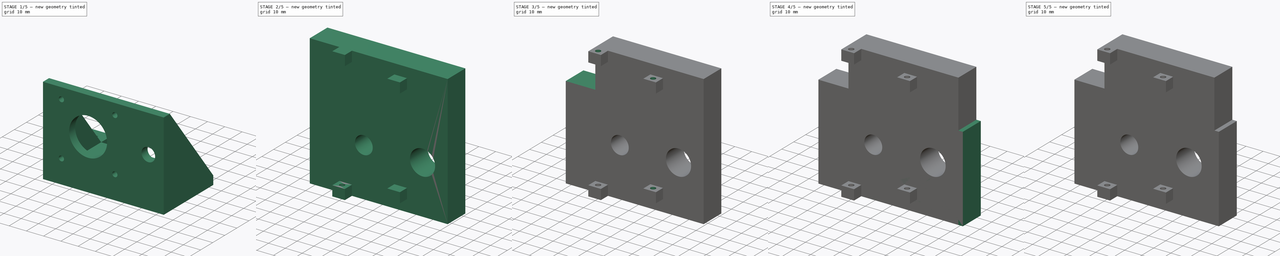
[diagram: build sequence overview — one tinted view per stage of 5, left to right]
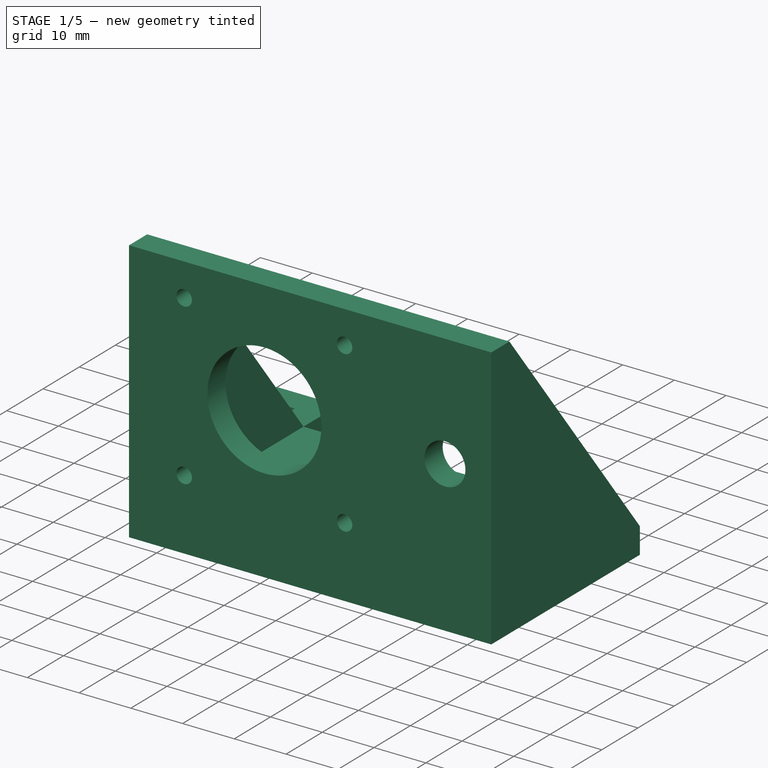
[diagram: stage 1 of 5 — iso view after this stage's code; geometry added in this stage tinted green]
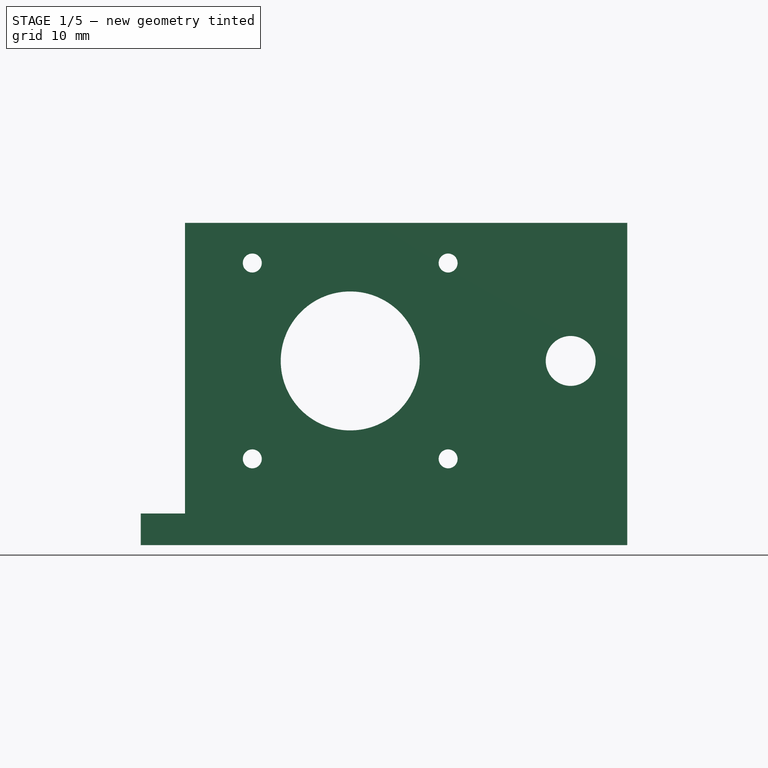
[diagram: stage 1 of 5 — front view after this stage's code; geometry added in this stage tinted green]
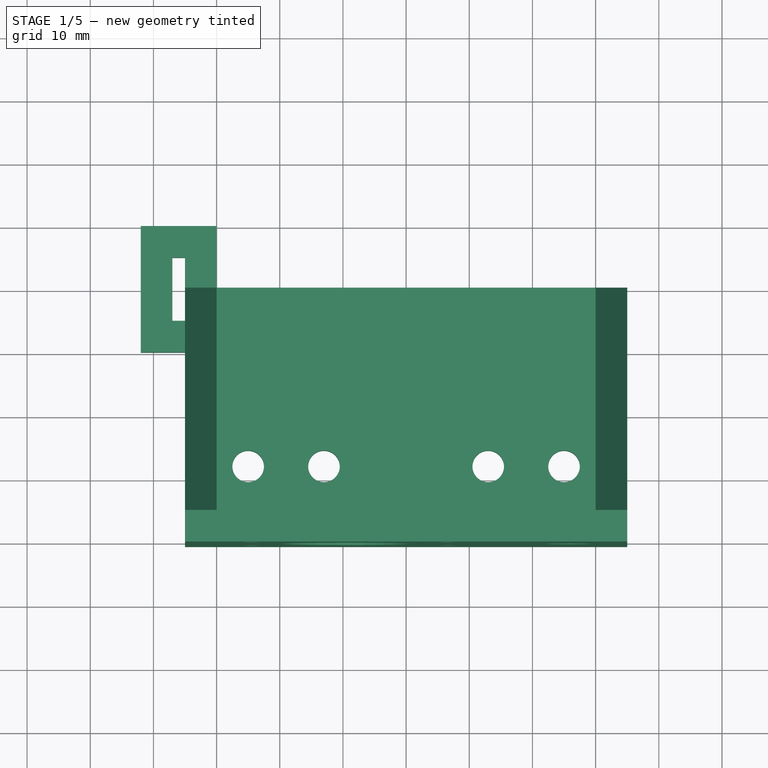
[diagram: stage 1 of 5 — top view after this stage's code; geometry added in this stage tinted green]
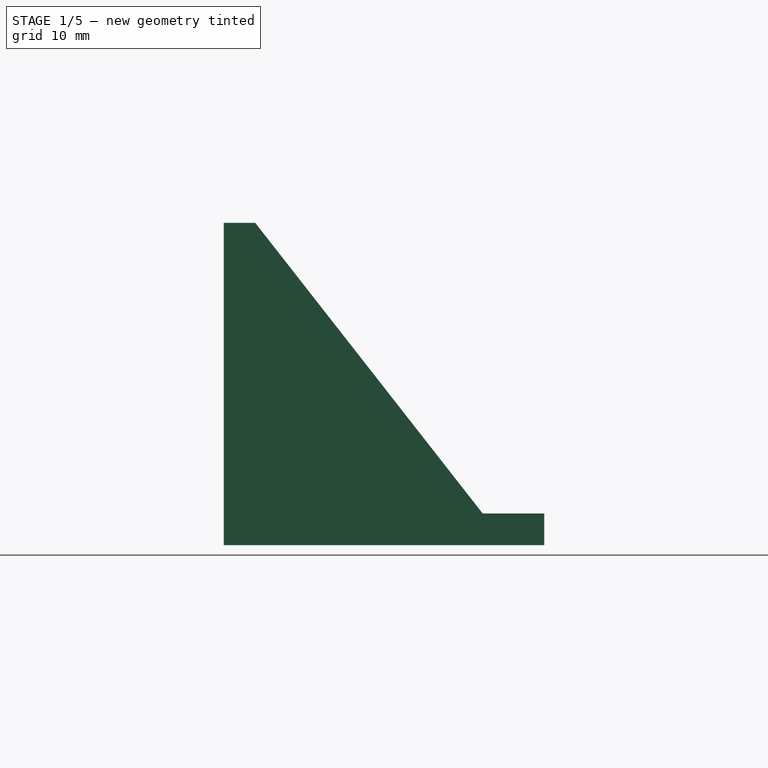
[diagram: stage 1 of 5 — right view after this stage's code; geometry added in this stage tinted green]
FCSTD DOCUMENT  (FreeCAD 0.19RUnknown)
Label: PenPlotter
License: All rights reserved
LicenseURL: http://en.wikipedia.org/wiki/All_rights_reserved
objects: Sketcher::SketchObject×23, PartDesign::Pocket×13, PartDesign::Pad×10, PartDesign::Body×4, PartDesign::ShapeBinder×3, PartDesign::LinearPattern×2, Spreadsheet::Sheet×1, PartDesign::Mirrored×1
note: 79 computed .brp shape members not serialized (recipe doc carries the construction recipe); baked Part::Feature solids carry a one-line shape summary decoded from their .brp

FEATURE [Sketcher::SketchObject] Sketch
  FullyConstrained = true
  MapMode = 5
  Support = -> [XY_Plane]
  expr: Constraints[24] = <<Spreadsheet>>.BottomDepth
  sketch-geometry (9):
    g0: LineSegment StartX=-35 StartY=20.5 StartZ=0 EndX=35 EndY=20.5 EndZ=0
    g1: LineSegment StartX=35 StartY=20.5 StartZ=0 EndX=35 EndY=-20.5 EndZ=0
    g2: LineSegment StartX=35 StartY=-20.5 StartZ=0 EndX=-35 EndY=-20.5 EndZ=0
    g3: LineSegment StartX=-35 StartY=-20.5 StartZ=0 EndX=-35 EndY=20.5 EndZ=0
    g4: Circle CenterX=-25 CenterY=-7.8 CenterZ=0 NormalX=0 NormalY=0 NormalZ=1 AngleXU=0 Radius=2.5
    g5: Circle CenterX=-13 CenterY=-7.8 CenterZ=0 NormalX=0 NormalY=0 NormalZ=1 AngleXU=0 Radius=2.5
    g6: Circle CenterX=13 CenterY=-7.8 CenterZ=0 NormalX=0 NormalY=0 NormalZ=1 AngleXU=0 Radius=2.5
    g7: Circle CenterX=25 CenterY=-7.8 CenterZ=0 NormalX=0 NormalY=0 NormalZ=1 AngleXU=0 Radius=2.5
    g8: LineSegment StartX=-35 StartY=-7.8 StartZ=0 EndX=35 EndY=-7.8 EndZ=0
  constraints (25):
    c: Coincident(g0,g1)
    c: Coincident(g1,g2)
    c: Coincident(g2,g3)
    c: Coincident(g3,g0)
    c: Horizontal(g0)
    c: Horizontal(g2)
    c: Vertical(g1)
    c: Vertical(g3)
    c: DistanceX(g0,g0) = 70
    c: Symmetric(g0,g2,g-1)
    c: Diameter(g4) = 5
    c: Equal(g4,g5)
    c: Equal(g5,g6)
    c: Equal(g6,g7)
    c: DistanceX(g2,g4) = 10
    c: DistanceX(g2,g5) = 22
    c: Horizontal(g8)
    c: PointOnObject(g8,g3)
    c: DistanceY(g2,g8) = 12.7
    c: PointOnObject(g5,g8)
    c: PointOnObject(g4,g8)
    c: PointOnObject(g8,g1)
    c: Symmetric(g4,g7,g-2)
    c: Symmetric(g5,g6,g-2)
    c: DistanceY(g1,g1) = 41
FEATURE [Spreadsheet::Sheet] Spreadsheet
  cells = A3=Wall Thickness; B3(WallThickness)=5; A4=Shaft Diameter; B4(ShaftDiameter)=7.9; A5=Slide Rail Width; B5(SlideRailWidth)=30.1; A6=Slide Rail Width Inner; B6=25.4; A7=Bottom Depth; B7(BottomDepth)=41; A8=Pen Mount Shaft Diameter; B8(PenMountShaftDiameter)=3
FEATURE [PartDesign::Pad] Pad  label="Bottom"
  Direction = (1,1,1)
  Length = 5
  Length2 = 100
  Profile = -> Sketch
  Type = 0
  expr: Length = Spreadsheet.WallThickness
FEATURE [Sketcher::SketchObject] Sketch001
  ExternalGeometry = -> [Pad]
  FullyConstrained = true
  MapMode = 5
  Placement = pos=(0,-20.5,0) rot=(1,0,0;1.5708rad)
  Support = -> [Pad]
  expr: Constraints[41] = Spreadsheet.WallThickness
  expr: Constraints[36] = <<Spreadsheet>>.ShaftDiameter
  expr: Constraints[47] = Spreadsheet.WallThickness + <<Spreadsheet>>.ShaftDiameter / 2
  sketch-geometry (19):
    g0: LineSegment StartX=35 StartY=51 StartZ=0 EndX=35 EndY=5 EndZ=0
    g1: LineSegment StartX=35 StartY=5 StartZ=0 EndX=-35 EndY=5 EndZ=0
    g2: LineSegment StartX=-35 StartY=5 StartZ=0 EndX=-35 EndY=51 EndZ=0
    g3: LineSegment StartX=-24.35 StartY=44.65 StartZ=0 EndX=6.65 EndY=44.65 EndZ=0
    g4: LineSegment StartX=6.65 StartY=44.65 StartZ=0 EndX=6.65 EndY=13.65 EndZ=0
    g5: LineSegment StartX=6.65 StartY=13.65 StartZ=0 EndX=-24.35 EndY=13.65 EndZ=0
    g6: LineSegment StartX=-24.35 StartY=13.65 StartZ=0 EndX=-24.35 EndY=44.65 EndZ=0
    g7: Circle CenterX=-24.35 CenterY=13.65 CenterZ=0 NormalX=0 NormalY=0 NormalZ=1 AngleXU=0 Radius=1.5
    g8: Circle CenterX=-24.35 CenterY=44.65 CenterZ=0 NormalX=0 NormalY=0 NormalZ=1 AngleXU=0 Radius=1.5
    g9: Circle CenterX=6.65 CenterY=13.65 CenterZ=0 NormalX=0 NormalY=0 NormalZ=1 AngleXU=0 Radius=1.5
    g10: Circle CenterX=6.65 CenterY=44.65 CenterZ=0 NormalX=0 NormalY=0 NormalZ=1 AngleXU=0 Radius=1.5
    g11: Circle CenterX=-8.85 CenterY=29.15 CenterZ=0 NormalX=0 NormalY=0 NormalZ=1 AngleXU=0 Radius=11
    g12: LineSegment StartX=-30 StartY=50.3 StartZ=0 EndX=12.3 EndY=50.3 EndZ=0
    g13: LineSegment StartX=12.3 StartY=50.3 StartZ=0 EndX=12.3 EndY=8 EndZ=0
    g14: LineSegment StartX=12.3 StartY=8 StartZ=0 EndX=-30 EndY=8 EndZ=0
    g15: LineSegment StartX=-30 StartY=8 StartZ=0 EndX=-30 EndY=50.3 EndZ=0
    g16: Circle CenterX=26.05 CenterY=29.15 CenterZ=0 NormalX=0 NormalY=0 NormalZ=1 AngleXU=0 Radius=3.95
    g17: LineSegment StartX=-8.85 StartY=29.15 StartZ=0 EndX=26.05 EndY=29.15 EndZ=0
    g18: LineSegment StartX=35 StartY=51 StartZ=0 EndX=-35 EndY=51 EndZ=0
  constraints (48):
    c: Coincident(g0,g1)
    c: Coincident(g1,g2)
    c: Vertical(g0)
    c: Vertical(g2)
    c: Coincident(g0,g-3)
    c: Coincident(g1,g-3)
    c: DistanceY(g0,g0) = 46
    c: Coincident(g3,g4)
    c: Coincident(g4,g5)
    c: Coincident(g5,g6)
    c: Coincident(g6,g3)
    c: Horizontal(g3)
    c: Horizontal(g5)
    c: Vertical(g4)
    c: Vertical(g6)
    c: DistanceX(g3,g3) = 31
    c: Equal(g4,g3)
    c: Coincident(g7,g5)
    c: Coincident(g8,g3)
    c: Coincident(g9,g4)
    c: Diameter(g7) = 3
    c: Equal(g7,g9)
    c: Equal(g9,g10)
    c: Equal(g10,g8)
    c: Diameter(g11) = 22
    c: Coincident(g12,g13)
    c: Coincident(g13,g14)
    c: Coincident(g14,g15)
    c: Coincident(g15,g12)
    c: Horizontal(g12)
    c: Horizontal(g14)
    c: Vertical(g13)
    c: Vertical(g15)
    c: DistanceX(g12,g12) = 42.3
    c: Equal(g12,g13)
    c: Symmetric(g12,g14,g11)
    c: Diameter(g16) = 7.9
    c: Coincident(g17,g11)
    c: Horizontal(g17)
    c: Coincident(g16,g17)
    c: DistanceY(g1,g14) = 3
    c: DistanceX(g1,g14) = 5
    c: Coincident(g18,g0)
    c: Coincident(g18,g2)
    c: Horizontal(g18)
    c: Coincident(g3,g10)
    c: Symmetric(g10,g7,g11)
    c: Distance(g16,g0) = 8.95
FEATURE [PartDesign::Pad] Pad004  label="FrontWall"
  BaseFeature = -> Pad
  Direction = (1,1,1)
  Length = 5
  Length2 = 100
  Profile = -> Sketch001
  Reversed = true
  Type = 0
  expr: Length = Spreadsheet.WallThickness
FEATURE [Sketcher::SketchObject] Sketch002
  ExternalGeometry = -> [Pad004]
  FullyConstrained = true
  MapMode = 5
  Placement = pos=(35,0,0) rot=(0.57735,0.57735,0.57735;2.0944rad)
  sketch-geometry (3):
    g0: LineSegment StartX=-15.5 StartY=51 StartZ=0 EndX=20.5 EndY=5 EndZ=0
    g1: LineSegment StartX=20.5 StartY=5 StartZ=0 EndX=-15.5 EndY=5 EndZ=0
    g2: LineSegment StartX=-15.5 StartY=5 StartZ=0 EndX=-15.5 EndY=51 EndZ=0
  constraints (6):
    c: Coincident(g0,g1)
    c: Coincident(g2,g0)
    c: Coincident(g0,g-3)
    c: Coincident(g0,g-4)
    c: Coincident(g-5,g1)
    c: Coincident(g-5,g2)
FEATURE [PartDesign::Pad] Pad005  label="RightWall"
  BaseFeature = -> Pad004
  Direction = (1,1,1)
  Length = 5
  Length2 = 100
  Profile = -> Sketch002
  Reversed = true
  Type = 0
  expr: Length = Spreadsheet.WallThickness
FEATURE [Sketcher::SketchObject] Sketch003
  ExternalGeometry = -> [Pad005]
  FullyConstrained = true
  MapMode = 5
  Placement = pos=(-35,0,0) rot=(0.57735,-0.57735,-0.57735;2.0944rad)
  sketch-geometry (3):
    g0: LineSegment StartX=15.5 StartY=51 StartZ=0 EndX=-20.5 EndY=5 EndZ=0
    g1: LineSegment StartX=-20.5 StartY=5 StartZ=0 EndX=15.5 EndY=5 EndZ=0
    g2: LineSegment StartX=15.5 StartY=5 StartZ=0 EndX=15.5 EndY=51 EndZ=0
  constraints (6):
    c: Coincident(g0,g1)
    c: Coincident(g2,g0)
    c: Coincident(g0,g-3)
    c: Coincident(g0,g-4)
    c: Coincident(g-6,g2)
    c: Coincident(g-6,g1)
FEATURE [PartDesign::Pad] Pad006  label="LeftWall"
  BaseFeature = -> Pad005
  Direction = (1,1,1)
  Length = 5
  Length2 = 100
  Profile = -> Sketch003
  Reversed = true
  Type = 0
  expr: Length = Spreadsheet.WallThickness
FEATURE [Sketcher::SketchObject] Sketch005
  ExternalGeometry = -> [Sketch]
  FullyConstrained = true
  MapMode = 5
  Placement = pos=(0,0,0) rot=(1,0,0;3.14159rad)
  Support = -> [Pad006]
  expr: Constraints[22] = <<Spreadsheet>>.SlideRailWidth / 2 + 8
  expr: Constraints[14] = Spreadsheet.WallThickness
  expr: Constraints[15] = Spreadsheet.WallThickness
  sketch-geometry (8):
    g0: LineSegment StartX=-30 StartY=-10.25 StartZ=0 EndX=-42 EndY=-10.25 EndZ=0
    g1: LineSegment StartX=-42 StartY=-10.25 StartZ=0 EndX=-42 EndY=-30.25 EndZ=0
    g2: LineSegment StartX=-42 StartY=-30.25 StartZ=0 EndX=-30 EndY=-30.25 EndZ=0
    g3: LineSegment StartX=-30 StartY=-30.25 StartZ=0 EndX=-30 EndY=-10.25 EndZ=0
    g4: LineSegment StartX=-37 StartY=-15.25 StartZ=0 EndX=-35 EndY=-15.25 EndZ=0
    g5: LineSegment StartX=-35 StartY=-15.25 StartZ=0 EndX=-35 EndY=-25.25 EndZ=0
    g6: LineSegment StartX=-35 StartY=-25.25 StartZ=0 EndX=-37 EndY=-25.25 EndZ=0
    g7: LineSegment StartX=-37 StartY=-25.25 StartZ=0 EndX=-37 EndY=-15.25 EndZ=0
  constraints (24):
    c: Coincident(g0,g1)
    c: Coincident(g1,g2)
    c: Coincident(g2,g3)
    c: Coincident(g3,g0)
    c: Vertical(g1)
    c: Vertical(g3)
    c: Coincident(g4,g5)
    c: Coincident(g5,g6)
    c: Coincident(g6,g7)
    c: Coincident(g7,g4)
    c: Horizontal(g4)
    c: Horizontal(g6)
    c: Vertical(g5)
    c: Vertical(g7)
    c: DistanceY(g4,g0) = 5
    c: DistanceX(g4,g0) = 5
    c: DistanceX(g6,g6) = 2
    c: DistanceY(g5,g5) = 10
    c: DistanceY(g2,g5) = 5
    c: DistanceX(g1,g6) = 5
    c: Horizontal(g2)
    c: Horizontal(g0)
    c: DistanceY(g4,g-3) = 23.05
    c: PointOnObject(g4,g-4)
FEATURE [PartDesign::Pad] Pad008  label="BeldAttachLeft"
  BaseFeature = -> Pad006
  Direction = (1,1,1)
  Length = 5
  Length2 = 100
  Profile = -> Sketch005
  Reversed = true
  Type = 0
  expr: Length = Spreadsheet.WallThickness
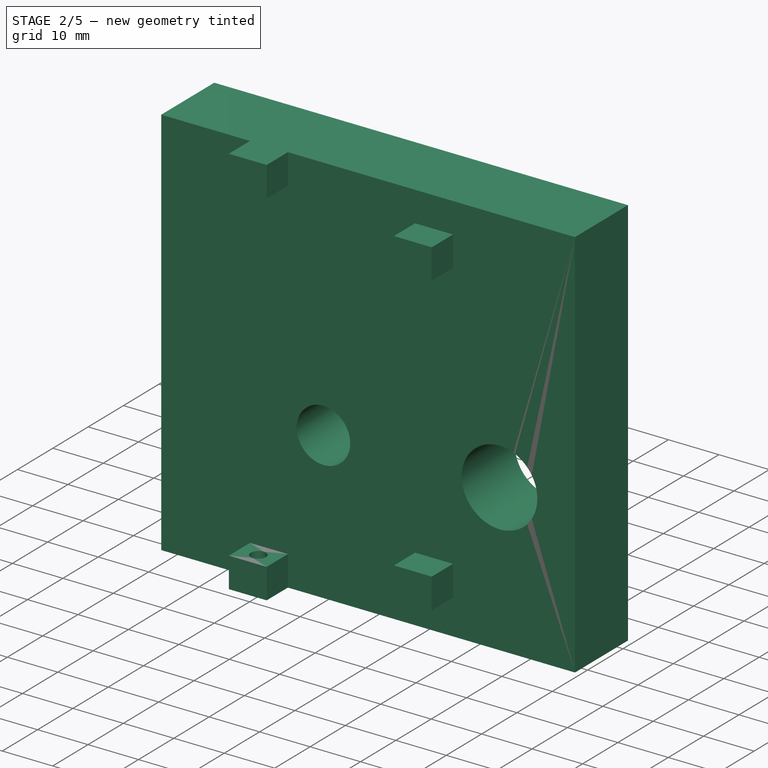
[diagram: stage 2 of 5 — iso view after this stage's code; geometry added in this stage tinted green]
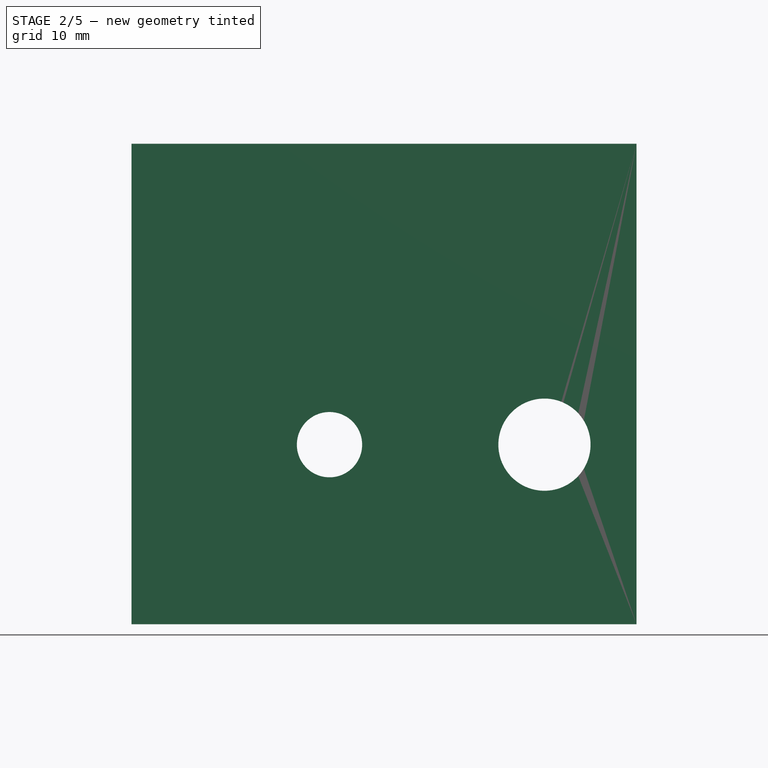
[diagram: stage 2 of 5 — front view after this stage's code; geometry added in this stage tinted green]
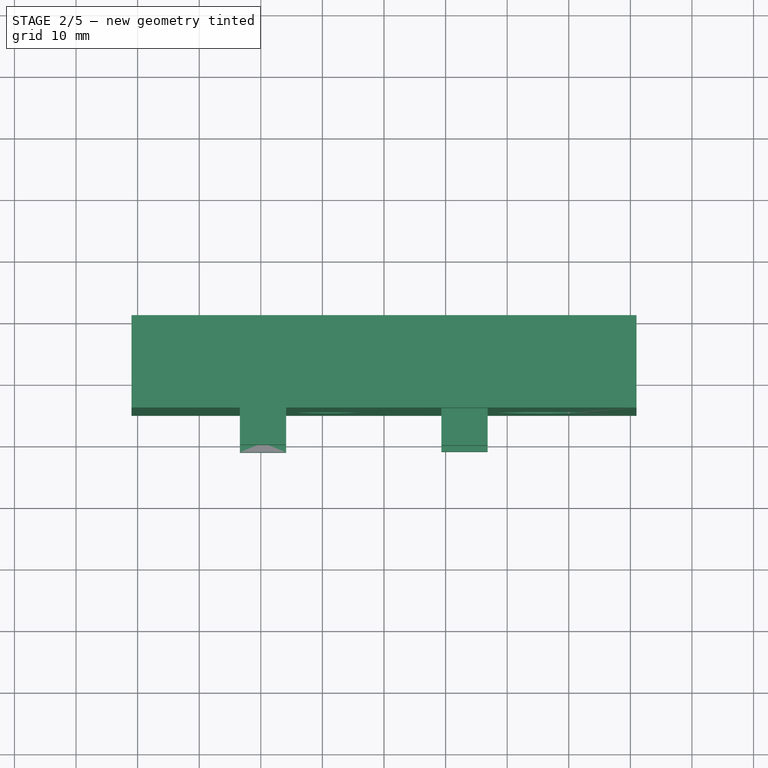
[diagram: stage 2 of 5 — top view after this stage's code; geometry added in this stage tinted green]
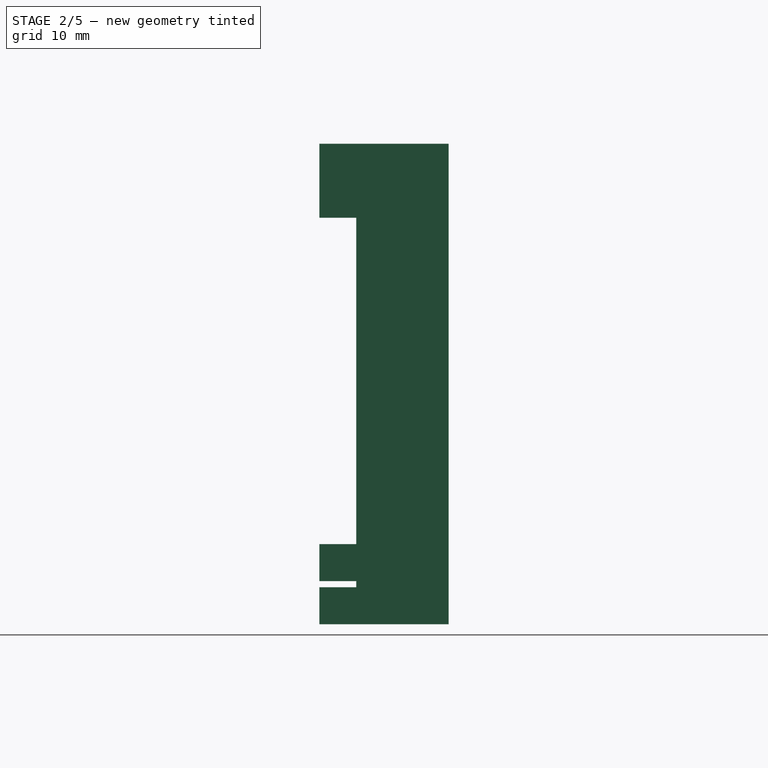
[diagram: stage 2 of 5 — right view after this stage's code; geometry added in this stage tinted green]
FEATURE [PartDesign::Mirrored] Mirrored  label="BeldAttachRight"
  BaseFeature = -> Pad008
  MirrorPlane = -> Sketch005 [V_Axis]
  Originals = -> [Pad008]
FEATURE [Sketcher::SketchObject] Sketch006
  ExternalGeometry = -> [Mirrored]
  FullyConstrained = true
  MapMode = 5
  Placement = pos=(0,-15.5,3.6e-15) rot=(0,0.707107,0.707107;3.14159rad)
  Support = -> [Mirrored]
  sketch-geometry (8):
    g0: ArcOfCircle CenterX=-26.05 CenterY=29.15 CenterZ=0 NormalX=0 NormalY=0 NormalZ=1 AngleXU=0 Radius=8.95 StartAngle=5.74663 EndAngle=6.87691
    g1: Circle CenterX=-26.05 CenterY=29.15 CenterZ=0 NormalX=0 NormalY=0 NormalZ=1 AngleXU=0 Radius=3.95
    g2: Circle CenterX=-26.05 CenterY=29.15 CenterZ=0 NormalX=0 NormalY=0 NormalZ=1 AngleXU=0 Radius=8.95
    g3: LineSegment StartX=-18.6317 StartY=34.1571 StartZ=0 EndX=-30 EndY=51 EndZ=0
    g4: LineSegment StartX=-30 StartY=51 StartZ=0 EndX=-35 EndY=51 EndZ=0
    g5: LineSegment StartX=-35 StartY=51 StartZ=0 EndX=-35 EndY=5 EndZ=0
    g6: LineSegment StartX=-35 StartY=5 StartZ=0 EndX=-30 EndY=5 EndZ=0
    g7: LineSegment StartX=-30 StartY=5 StartZ=0 EndX=-18.3577 EndY=24.5749 EndZ=0
  constraints (20):
    c: Coincident(g1,g2)
    c: Coincident(g1,g0)
    c: Coincident(g1,g-3)
    c: Equal(g1,g-3)
    c: PointOnObject(g3,g-4)
    c: Coincident(g3,g4)
    c: Horizontal(g4)
    c: Coincident(g4,g5)
    c: Coincident(g5,g6)
    c: PointOnObject(g6,g-4)
    c: Coincident(g6,g7)
    c: Coincident(g-5,g4)
    c: Tangent(g2,g5)
    c: Equal(g0,g2)
    c: Coincident(g0,g7)
    c: Coincident(g0,g3)
    c: Tangent(g2,g3)
    c: Tangent(g7,g2)
    c: Horizontal(g6)
    c: Coincident(g-5,g5)
FEATURE [PartDesign::Pad] Pad009  label="ShaftMount"
  BaseFeature = -> Mirrored
  Direction = (1,1,1)
  Length = 36
  Length2 = 100
  Profile = -> Sketch006
  Type = 0
  expr: Length = <<Spreadsheet>>.BottomDepth - Spreadsheet.WallThickness
FEATURE [PartDesign::Body] Body001  label="PenMountSimple"
  Group = -> [ShapeBinder,Sketch007,Pad010,Sketch008,Pocket,Sketch009,Pocket001,LinearPattern,Sketch010,Pocket002,LinearPattern001]
  Origin = -> Origin001
  Placement = pos=(0,-35,0) rot=(0,0,1;0rad)
  Tip = -> LinearPattern001
FEATURE [PartDesign::ShapeBinder] ShapeBinder001
  Support = -> [Pad009]
  TraceSupport = false
FEATURE [Sketcher::SketchObject] Sketch011
  ExternalGeometry = -> [ShapeBinder001]
  FullyConstrained = true
  MapMode = 5
  Placement = pos=(0,0,0) rot=(1,0,0;1.5708rad)
  Support = -> [XZ_Plane002]
  expr: Constraints[7] = 75 + <<Spreadsheet>>.PenMountShaftDiameter
  sketch-geometry (6):
    g0: LineSegment StartX=-41 StartY=78 StartZ=0 EndX=41 EndY=78 EndZ=0
    g1: LineSegment StartX=41 StartY=78 StartZ=0 EndX=41 EndY=0 EndZ=0
    g2: LineSegment StartX=41 StartY=0 StartZ=0 EndX=-41 EndY=0 EndZ=0
    g3: LineSegment StartX=-41 StartY=0 StartZ=0 EndX=-41 EndY=78 EndZ=0
    g4: Circle CenterX=26.05 CenterY=29.15 CenterZ=0 NormalX=0 NormalY=0 NormalZ=1 AngleXU=0 Radius=7.485
    g5: Circle CenterX=-8.85 CenterY=29.15 CenterZ=0 NormalX=0 NormalY=0 NormalZ=1 AngleXU=0 Radius=5.3
  constraints (15):
    c: Coincident(g0,g1)
    c: Coincident(g1,g2)
    c: Coincident(g2,g3)
    c: Coincident(g3,g0)
    c: Horizontal(g0)
    c: Vertical(g1)
    c: Vertical(g3)
    c: DistanceY(g1,g1) = 78
    c: DistanceX(g2,g2) = 82
    c: Diameter(g4) = 14.97
    c: Diameter(g5) = 10.6
    c: Coincident(g5,g-3)
    c: Coincident(g-4,g4)
    c: Horizontal(g2)
    c: Symmetric(g1,g2,g-1)
FEATURE [PartDesign::Pad] Pad011  label="PenMountBase"
  Direction = (1,1,1)
  Length = 15
  Length2 = 100
  Placement = pos=(0,0,0) rot=(1,0,0;1.5708rad)
  Profile = -> Sketch011
  Type = 0
FEATURE [Sketcher::SketchObject] Sketch012
  ExternalGeometry = -> [Pad011]
  FullyConstrained = true
  MapMode = 5
  Placement = pos=(0,-15,-3.3e-15) rot=(1,0,0;1.5708rad)
  Support = -> [Pad011]
  expr: Constraints[13] = 2 * <<Spreadsheet>>.PenMountShaftDiameter
  expr: Constraints[15] = 2.5 * <<Spreadsheet>>.PenMountShaftDiameter
  expr: Constraints[33] = <<Spreadsheet>>.PenMountShaftDiameter / 2 + 4
  expr: Constraints[60] = 62 - <<Spreadsheet>>.PenMountShaftDiameter
  expr: Constraints[61] = 75 - <<Spreadsheet>>.PenMountShaftDiameter
  sketch-geometry (22):
    g0: LineSegment StartX=-23.4 StartY=6 StartZ=0 EndX=-15.9 EndY=6 EndZ=0
    g1: LineSegment StartX=-15.9 StartY=6 StartZ=0 EndX=-15.9 EndY=-9e-16 EndZ=0
    g2: LineSegment StartX=-15.9 StartY=-9e-16 StartZ=0 EndX=-23.4 EndY=-1.2e-15 EndZ=0
    g3: LineSegment StartX=-23.4 StartY=-1.2e-15 StartZ=0 EndX=-23.4 EndY=6 EndZ=0
    g4: LineSegment StartX=-14.15 StartY=78 StartZ=0 EndX=-14.15 EndY=0 EndZ=0
    g5: LineSegment StartX=-19.65 StartY=78 StartZ=0 EndX=-19.65 EndY=0 EndZ=0
    g6: LineSegment StartX=-23.4 StartY=78 StartZ=0 EndX=-15.9 EndY=78 EndZ=0
    g7: LineSegment StartX=-15.9 StartY=78 StartZ=0 EndX=-15.9 EndY=72 EndZ=0
    g8: LineSegment StartX=-15.9 StartY=72 StartZ=0 EndX=-23.4 EndY=72 EndZ=0
    g9: LineSegment StartX=-23.4 StartY=72 StartZ=0 EndX=-23.4 EndY=78 EndZ=0
    g10: LineSegment StartX=18.565 StartY=78 StartZ=0 EndX=18.565 EndY=0 EndZ=0
    g11: LineSegment StartX=13.065 StartY=78 StartZ=0 EndX=13.065 EndY=0 EndZ=0
    g12: LineSegment StartX=-19.65 StartY=78 StartZ=0 EndX=-14.15 EndY=78 EndZ=0
    g13: LineSegment StartX=13.065 StartY=78 StartZ=0 EndX=18.565 EndY=78 EndZ=0
    g14: LineSegment StartX=9.315 StartY=13 StartZ=0 EndX=16.815 EndY=13 EndZ=0
    g15: LineSegment StartX=16.815 StartY=13 StartZ=0 EndX=16.815 EndY=7 EndZ=0
    g16: LineSegment StartX=16.815 StartY=7 StartZ=0 EndX=9.315 EndY=7 EndZ=0
    g17: LineSegment StartX=9.315 StartY=7 StartZ=0 EndX=9.315 EndY=13 EndZ=0
    g18: LineSegment StartX=9.315 StartY=72 StartZ=0 EndX=16.815 EndY=72 EndZ=0
    g19: LineSegment StartX=16.815 StartY=72 StartZ=0 EndX=16.815 EndY=66 EndZ=0
    g20: LineSegment StartX=16.815 StartY=66 StartZ=0 EndX=9.315 EndY=66 EndZ=0
    g21: LineSegment StartX=9.315 StartY=66 StartZ=0 EndX=9.315 EndY=72 EndZ=0
  constraints (63):
    c: Coincident(g0,g1)
    c: Coincident(g1,g2)
    c: Coincident(g2,g3)
    c: Coincident(g3,g0)
    c: Horizontal(g0)
    c: Vertical(g1)
    c: Vertical(g3)
    c: PointOnObject(g4,g-4)
    c: PointOnObject(g4,g-5)
    c: Vertical(g4)
    c: Tangent(g4,g-3)
    c: PointOnObject(g5,g-4)
    c: Vertical(g5)
    c: DistanceY(g1,g1) = 6
    c: Tangent(g2,g-5)
    c: DistanceX(g2,g2) = 7.5
    c: Symmetric(g2,g1,g5)
    c: Coincident(g6,g7)
    c: Coincident(g7,g8)
    c: Coincident(g8,g9)
    c: Coincident(g9,g6)
    c: Horizontal(g8)
    c: Vertical(g9)
    c: Equal(g8,g2)
    c: Equal(g9,g3)
    c: Tangent(g7,g1)
    c: PointOnObject(g10,g-4)
    c: PointOnObject(g10,g-5)
    c: Vertical(g10)
    c: Tangent(g-6,g10)
    c: PointOnObject(g11,g-4)
    c: PointOnObject(g11,g-5)
    c: Vertical(g11)
    c: DistanceX(g12,g12) = 5.5
    c: Coincident(g13,g11)
    c: Coincident(g13,g10)
    c: Coincident(g5,g12)
    c: Coincident(g4,g12)
    c: Equal(g12,g13)
    c: Coincident(g14,g15)
    c: Coincident(g15,g16)
    c: Coincident(g16,g17)
    c: Coincident(g17,g14)
    c: Horizontal(g14)
    c: Vertical(g15)
    c: Vertical(g17)
    c: Equal(g3,g17)
    c: Equal(g0,g14)
    c: Symmetric(g16,g15,g11)
    c: DistanceY(g10,g15) = 7
    c: Coincident(g18,g19)
    c: Coincident(g19,g20)
    c: Coincident(g20,g21)
    c: Coincident(g21,g18)
    c: Horizontal(g18)
    c: Vertical(g19)
    c: Vertical(g21)
    c: Equal(g1,g19)
    c: Equal(g20,g0)
    c: Symmetric(g19,g20,g11)
    c: DistanceY(g14,g18) = 59
    c: DistanceY(g0,g6) = 72
    c: Horizontal(g6)
FEATURE [PartDesign::Pad] Pad012  label="ShaftMounts"
  BaseFeature = -> Pad011
  Direction = (1,1,1)
  Length = 6
  Length2 = 100
  Placement = pos=(0,0,0) rot=(1,0,0;1.5708rad)
  Profile = -> Sketch012
  Type = 0
  expr: Length = 2 * <<Spreadsheet>>.PenMountShaftDiameter
FEATURE [Sketcher::SketchObject] Sketch013
  ExternalGeometry = -> [Pad012]
  FullyConstrained = true
  MapMode = 5
  Placement = pos=(0,0,6) rot=(0,0,1;3.14159rad)
  Support = -> [Pad012]
  expr: Constraints[0] = <<Spreadsheet>>.PenMountShaftDiameter
  sketch-geometry (1):
    g0: Circle CenterX=19.65 CenterY=18 CenterZ=0 NormalX=0 NormalY=0 NormalZ=1 AngleXU=0 Radius=1.5
  constraints (2):
    c: Diameter(g0) = 3
    c: Symmetric(g-4,g-3,g0)
FEATURE [PartDesign::Pocket] Pocket003  label="ShaftMountHole1"
  BaseFeature = -> Pad012
  Length = 3
  Length2 = 100
  Placement = pos=(0,0,0) rot=(1,0,0;1.5708rad)
  Profile = -> Sketch013
  Type = 0
  expr: Length = <<Spreadsheet>>.PenMountShaftDiameter
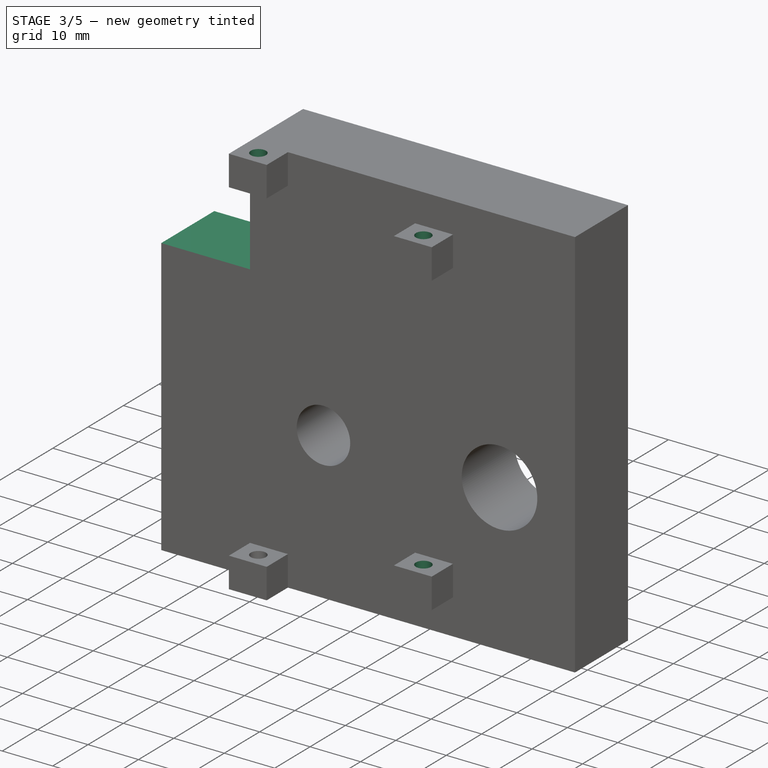
[diagram: stage 3 of 5 — iso view after this stage's code; geometry added in this stage tinted green]
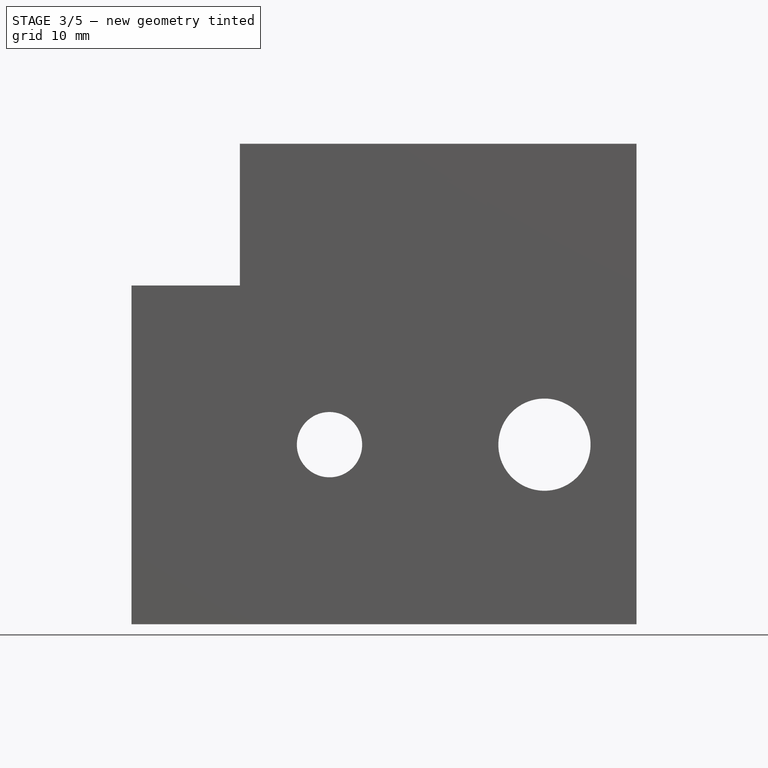
[diagram: stage 3 of 5 — front view after this stage's code; geometry added in this stage tinted green]
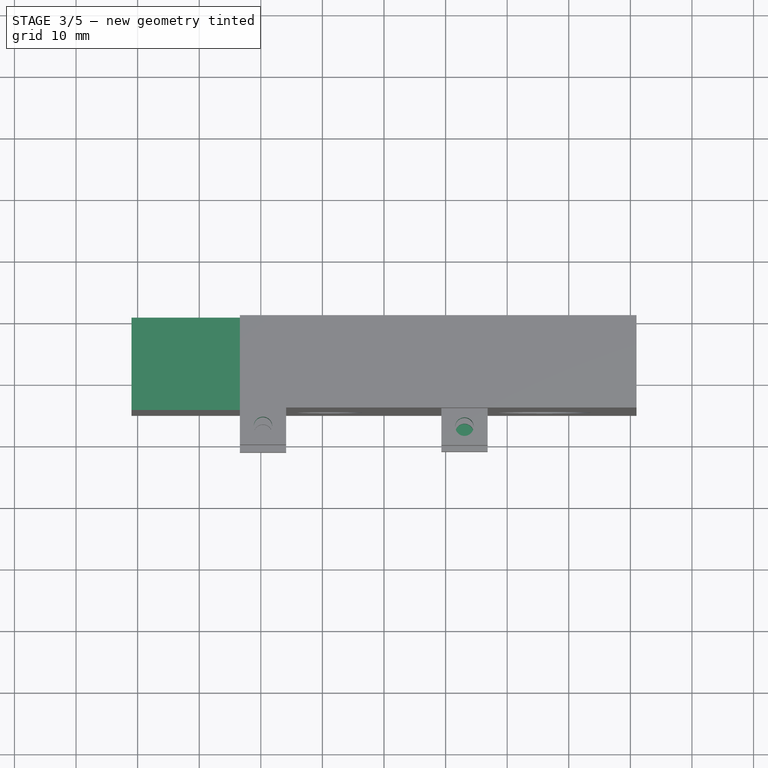
[diagram: stage 3 of 5 — top view after this stage's code; geometry added in this stage tinted green]
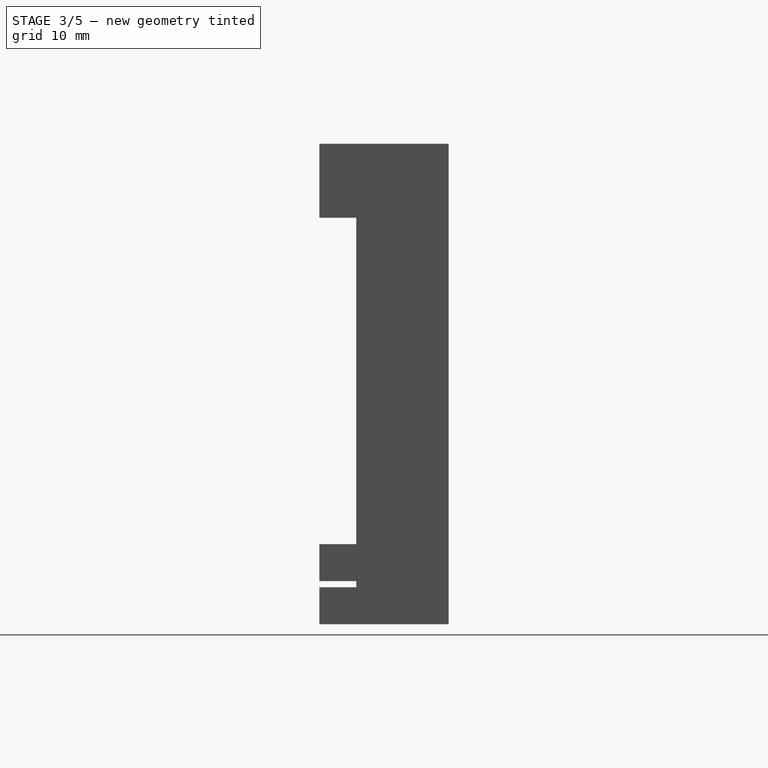
[diagram: stage 3 of 5 — right view after this stage's code; geometry added in this stage tinted green]
FEATURE [Sketcher::SketchObject] Sketch014
  ExternalGeometry = -> [Pocket003]
  FullyConstrained = true
  MapMode = 5
  Placement = pos=(0,0,13) rot=(0,0,1;3.14159rad)
  Support = -> [Pocket003]
  expr: Constraints[0] = <<Spreadsheet>>.PenMountShaftDiameter
  sketch-geometry (1):
    g0: Circle CenterX=-13.065 CenterY=18 CenterZ=0 NormalX=0 NormalY=0 NormalZ=1 AngleXU=0 Radius=1.5
  constraints (2):
    c: Diameter(g0) = 3
    c: Symmetric(g-3,g-4,g0)
FEATURE [PartDesign::Pocket] Pocket004  label="ShaftMountHole2"
  BaseFeature = -> Pocket003
  Length = 3
  Length2 = 100
  Placement = pos=(0,0,0) rot=(1,0,0;1.5708rad)
  Profile = -> Sketch014
  Type = 0
  expr: Length = <<Spreadsheet>>.PenMountShaftDiameter
FEATURE [Sketcher::SketchObject] Sketch015
  ExternalGeometry = -> [Pocket004]
  FullyConstrained = true
  MapMode = 5
  Placement = pos=(0,0,78) rot=(0,0,1;3.14159rad)
  Support = -> [Pocket004]
  expr: Constraints[0] = <<Spreadsheet>>.PenMountShaftDiameter
  sketch-geometry (1):
    g0: Circle CenterX=19.65 CenterY=18 CenterZ=0 NormalX=0 NormalY=0 NormalZ=1 AngleXU=0 Radius=1.5
  constraints (2):
    c: Diameter(g0) = 3
    c: Symmetric(g-4,g-3,g0)
FEATURE [PartDesign::Pocket] Pocket005  label="ShaftMountHole3"
  BaseFeature = -> Pocket004
  Length = 5
  Length2 = 100
  Placement = pos=(0,0,0) rot=(1,0,0;1.5708rad)
  Profile = -> Sketch015
  Type = 2
FEATURE [Sketcher::SketchObject] Sketch016
  ExternalGeometry = -> [Pocket005]
  FullyConstrained = true
  MapMode = 5
  Placement = pos=(0,0,72) rot=(0,0,1;3.14159rad)
  Support = -> [Pocket005]
  expr: Constraints[0] = <<Spreadsheet>>.PenMountShaftDiameter
  sketch-geometry (1):
    g0: Circle CenterX=-13.065 CenterY=18 CenterZ=0 NormalX=0 NormalY=0 NormalZ=1 AngleXU=0 Radius=1.5
  constraints (2):
    c: Diameter(g0) = 3
    c: Symmetric(g-3,g-4,g0)
FEATURE [PartDesign::Pocket] Pocket006  label="ShaftMountHole4"
  BaseFeature = -> Pocket005
  Length = 5
  Length2 = 100
  Placement = pos=(0,0,0) rot=(1,0,0;1.5708rad)
  Profile = -> Sketch016
  Type = 2
FEATURE [PartDesign::ShapeBinder] ShapeBinder002
  Support = -> [Pocket006]
  TraceSupport = false
FEATURE [Sketcher::SketchObject] Sketch017
  ExternalGeometry = -> [ShapeBinder002]
  FullyConstrained = true
  MapMode = 5
  Placement = pos=(0,0,0) rot=(1,0,0;1.5708rad)
  Support = -> [XZ_Plane003]
  sketch-geometry (16):
    g0: LineSegment StartX=-15.9 StartY=6 StartZ=0 EndX=-15.9 EndY=29.15 EndZ=0
    g1: LineSegment StartX=9.315 StartY=13 StartZ=0 EndX=16.815 EndY=13 EndZ=0
    g2: LineSegment StartX=16.815 StartY=13 StartZ=0 EndX=16.815 EndY=39.5 EndZ=0
    g3: LineSegment StartX=16.815 StartY=39.5 StartZ=0 EndX=9.315 EndY=39.5 EndZ=0
    g4: LineSegment StartX=-23.4 StartY=6 StartZ=0 EndX=-15.9 EndY=6 EndZ=0
    g5: LineSegment StartX=-23.4 StartY=6 StartZ=0 EndX=-23.4 EndY=45.5 EndZ=0
    g6: LineSegment StartX=-23.4 StartY=45.5 StartZ=0 EndX=-15.9 EndY=45.5 EndZ=0
    g7: LineSegment StartX=16.815 StartY=66 StartZ=0 EndX=16.815 EndY=39.5 EndZ=0
    g8: LineSegment StartX=-15.9 StartY=72 StartZ=0 EndX=-15.9 EndY=45.5 EndZ=0
    g9: LineSegment StartX=9.315 StartY=39.5 StartZ=0 EndX=9.315 EndY=78 EndZ=0
    g10: LineSegment StartX=9.315 StartY=78 StartZ=0 EndX=-15.9 EndY=78 EndZ=0
    g11: LineSegment StartX=-15.9 StartY=78 StartZ=0 EndX=-15.9 EndY=45.5 EndZ=0
    g12: LineSegment StartX=9.315 StartY=3.8e-15 StartZ=0 EndX=9.315 EndY=13 EndZ=0
    g13: ArcOfCircle CenterX=-8.85 CenterY=29.15 CenterZ=0 NormalX=0 NormalY=0 NormalZ=1 AngleXU=0 Radius=7.05 StartAngle=0 EndAngle=3.14159
    g14: LineSegment StartX=9.315 StartY=3.8e-15 StartZ=0 EndX=-1.8 EndY=3.4e-15 EndZ=0
    g15: LineSegment StartX=-1.8 StartY=3.4e-15 StartZ=0 EndX=-1.8 EndY=29.15 EndZ=0
  constraints (38):
    c: Vertical(g0)
    c: Coincident(g1,g2)
    c: Vertical(g2)
    c: Coincident(g2,g3)
    c: Vertical(g5)
    c: Coincident(g5,g6)
    c: Horizontal(g6)
    c: Coincident(g4,g0)
    c: Coincident(g-3,g0)
    c: Coincident(g-4,g1)
    c: Coincident(g4,g5)
    c: Coincident(g4,g-3)
    c: Coincident(g7,g2)
    c: Equal(g2,g7)
    c: Coincident(g7,g-5)
    c: Coincident(g8,g-6)
    c: Coincident(g8,g6)
    c: Vertical(g8)
    c: Equal(g7,g8)
    c: Equal(g-5,g3)
    c: Horizontal(g3)
    c: Coincident(g3,g9)
    c: Vertical(g9)
    c: Coincident(g9,g10)
    c: Horizontal(g10)
    c: Coincident(g10,g11)
    c: Coincident(g11,g6)
    c: Coincident(g10,g-7)
    c: Vertical(g12)
    c: Coincident(g1,g12)
    c: Coincident(g-4,g1)
    c: Coincident(g13,g-9)
    c: Coincident(g12,g14)
    c: Coincident(g14,g15)
    c: Vertical(g15)
    c: Tangent(g-8,g14)
    c: Tangent(g13,g15) = -1.5708
    c: Tangent(g13,g0) = 1.5708
FEATURE [PartDesign::Pad] Pad013  label="Base001"
  Direction = (1,1,1)
  Length = 6
  Length2 = 100
  Placement = pos=(0,0,0) rot=(1,0,0;1.5708rad)
  Profile = -> Sketch017
  Type = 0
  expr: Length = 2 * <<Spreadsheet>>.PenMountShaftDiameter
FEATURE [Sketcher::SketchObject] Sketch018
  ExternalGeometry = -> [Pad013,Sketch017]
  FullyConstrained = true
  MapMode = 5
  Placement = pos=(0,0,3.5e-15) rot=(1,0,0;3.14159rad)
  Support = -> [Pad013]
  sketch-geometry (3):
    g0: LineSegment StartX=-1.8 StartY=6 StartZ=0 EndX=3.7575 EndY=2 EndZ=0
    g1: LineSegment StartX=3.7575 StartY=2 StartZ=0 EndX=9.315 EndY=6 EndZ=0
    g2: LineSegment StartX=-1.8 StartY=6 StartZ=0 EndX=9.315 EndY=6 EndZ=0
  constraints (7):
    c: Coincident(g-3,g0)
    c: Coincident(g0,g1)
    c: Coincident(g1,g-3)
    c: DistanceY(g-4,g0) = 2
    c: Coincident(g2,g0)
    c: Coincident(g2,g1)
    c: Equal(g1,g0)
FEATURE [PartDesign::Pocket] Pocket007  label="PenSlot001"
  BaseFeature = -> Pad013
  Length = 5
  Length2 = 100
  Placement = pos=(0,0,0) rot=(1,0,0;1.5708rad)
  Profile = -> Sketch018
  Type = 1
FEATURE [PartDesign::Body] Body003  label="PenMountPart2"
  Group = -> [ShapeBinder002,Sketch017,Pad013,Sketch018,Pocket007,Sketch019,Pocket008,Sketch020,Pocket009,Sketch021,Pocket010,Sketch022,Pocket011]
  Origin = -> Origin003
  Placement = pos=(0,-70,0) rot=(0,0,1;0rad)
  Tip = -> Pocket011
FEATURE [Sketcher::SketchObject] Sketch023
  ExternalGeometry = -> [Pocket006]
  FullyConstrained = true
  MapMode = 5
  Placement = pos=(0,-15,-3.3e-15) rot=(1,0,0;1.5708rad)
  Support = -> [Pocket006]
  sketch-geometry (4):
    g0: LineSegment StartX=-41 StartY=78 StartZ=0 EndX=-23.4 EndY=78 EndZ=0
    g1: LineSegment StartX=-23.4 StartY=78 StartZ=0 EndX=-23.4 EndY=55 EndZ=0
    g2: LineSegment StartX=-23.4 StartY=55 StartZ=0 EndX=-41 EndY=55 EndZ=0
    g3: LineSegment StartX=-41 StartY=55 StartZ=0 EndX=-41 EndY=78 EndZ=0
  constraints (10):
    c: Coincident(g0,g1)
    c: Coincident(g1,g2)
    c: Coincident(g2,g3)
    c: Coincident(g3,g0)
    c: Horizontal(g0)
    c: Horizontal(g2)
    c: Tangent(g1,g-3)
    c: Coincident(g0,g-4)
    c: Vertical(g3)
    c: DistanceY(g-4,g2) = 55
FEATURE [PartDesign::Pocket] Pocket012
  BaseFeature = -> Pocket006
  Length = 5
  Length2 = 100
  Placement = pos=(0,0,0) rot=(1,0,0;1.5708rad)
  Profile = -> Sketch023
  Type = 1
FEATURE [PartDesign::Body] Body002  label="PenMountPart1"
  Group = -> [ShapeBinder001,Sketch011,Pad011,Sketch012,Pad012,Sketch013,Pocket003,Sketch014,Pocket004,Sketch015,Pocket005,Sketch016,Pocket006,Sketch023,Pocket012]
  Origin = -> Origin002
  Placement = pos=(0,-39,0) rot=(0,0,1;0rad)
  Tip = -> Pocket012
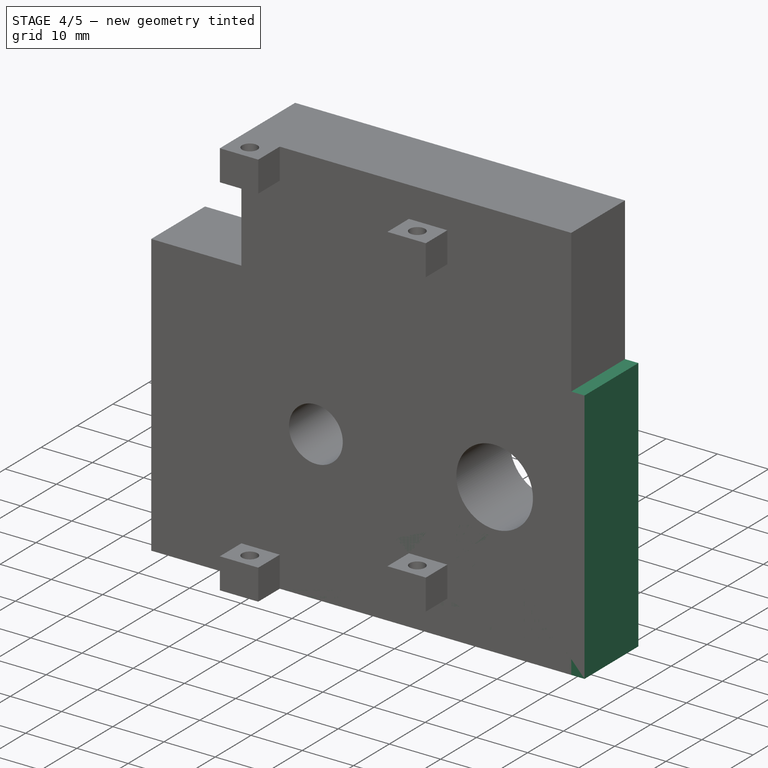
[diagram: stage 4 of 5 — iso view after this stage's code; geometry added in this stage tinted green]
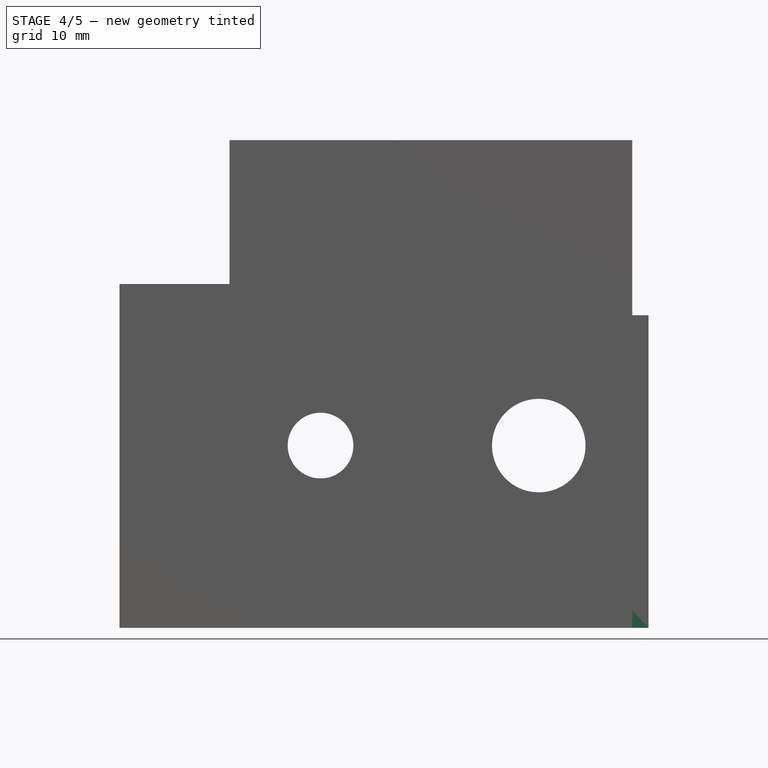
[diagram: stage 4 of 5 — front view after this stage's code; geometry added in this stage tinted green]
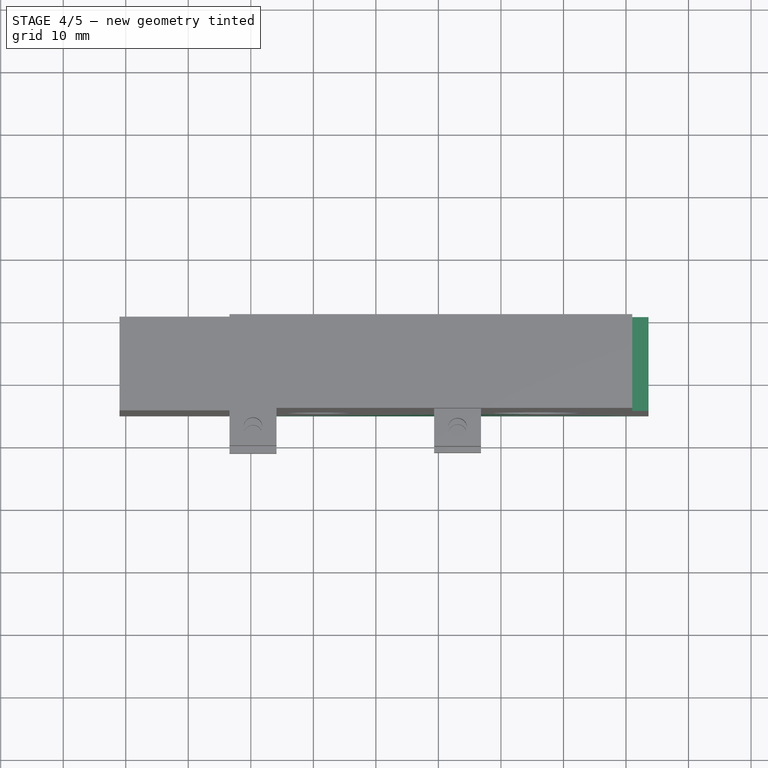
[diagram: stage 4 of 5 — top view after this stage's code; geometry added in this stage tinted green]
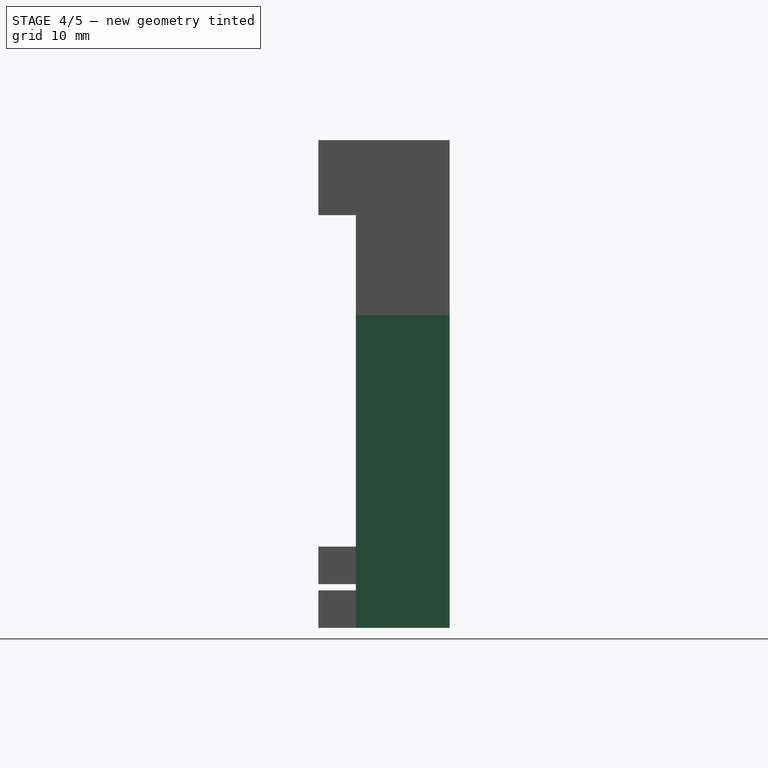
[diagram: stage 4 of 5 — right view after this stage's code; geometry added in this stage tinted green]
FEATURE [PartDesign::Body] Body  label="MotorMount"
  Group = -> [Sketch,Pad,Sketch001,Pad004,Sketch002,Sketch003,Pad005,Pad006,Sketch005,Pad008,Mirrored,Sketch006,Pad009]
  Origin = -> Origin
  Tip = -> Pad009
FEATURE [PartDesign::ShapeBinder] ShapeBinder
  Support = -> [Pad009]
  TraceSupport = false
FEATURE [Sketcher::SketchObject] Sketch007
  ExternalGeometry = -> [ShapeBinder]
  FullyConstrained = true
  MapMode = 5
  Placement = pos=(0,0,0) rot=(1,0,0;1.5708rad)
  Support = -> [XZ_Plane001]
  sketch-geometry (8):
    g0: LineSegment StartX=-26.4 StartY=50 StartZ=0 EndX=43.6 EndY=50 EndZ=0
    g1: LineSegment StartX=43.6 StartY=50 StartZ=0 EndX=43.6 EndY=0 EndZ=0
    g2: LineSegment StartX=43.6 StartY=0 StartZ=0 EndX=-26.4 EndY=0 EndZ=0
    g3: LineSegment StartX=-26.4 StartY=0 StartZ=0 EndX=-26.4 EndY=50 EndZ=0
    g4: Circle CenterX=26.05 CenterY=29.15 CenterZ=0 NormalX=0 NormalY=0 NormalZ=1 AngleXU=0 Radius=7.475
    g5: Circle CenterX=-8.85 CenterY=29.15 CenterZ=0 NormalX=0 NormalY=0 NormalZ=1 AngleXU=0 Radius=5.25
    g6: LineSegment StartX=-8.85 StartY=29.15 StartZ=0 EndX=-26.4 EndY=29.15 EndZ=0
    g7: LineSegment StartX=43.6 StartY=29.15 StartZ=0 EndX=26.05 EndY=29.15 EndZ=0
  constraints (22):
    c: Coincident(g0,g1)
    c: Coincident(g1,g2)
    c: Coincident(g2,g3)
    c: Coincident(g3,g0)
    c: Horizontal(g0)
    c: Horizontal(g2)
    c: Vertical(g1)
    c: Vertical(g3)
    c: Coincident(g4,g-4)
    c: Coincident(g5,g-3)
    c: Diameter(g4) = 14.95
    c: Diameter(g5) = 10.5
    c: DistanceY(g3,g3) = 50
    c: DistanceX(g0,g0) = 70
    c: PointOnObject(g-1,g2)
    c: Coincident(g6,g5)
    c: PointOnObject(g6,g3)
    c: Horizontal(g6)
    c: PointOnObject(g7,g1)
    c: Coincident(g7,g4)
    c: Horizontal(g7)
    c: Equal(g7,g6)
FEATURE [PartDesign::Pad] Pad010  label="Base"
  Direction = (1,1,1)
  Length = 15
  Length2 = 100
  Placement = pos=(0,0,0) rot=(1,0,0;1.5708rad)
  Profile = -> Sketch007
  Type = 0
FEATURE [Sketcher::SketchObject] Sketch019
  ExternalGeometry = -> [Pocket007]
  FullyConstrained = true
  MapMode = 5
  Placement = pos=(0,-6,-1.3e-15) rot=(1,0,0;1.5708rad)
  Support = -> [Pocket007]
  sketch-geometry (8):
    g0: LineSegment StartX=-8.85 StartY=36.2 StartZ=0 EndX=-1.8 EndY=36.2 EndZ=0
    g1: LineSegment StartX=-1.8 StartY=36.2 StartZ=0 EndX=-1.8 EndY=34.2 EndZ=0
    g2: LineSegment StartX=-1.8 StartY=34.2 StartZ=0 EndX=-3.93065 EndY=34.2 EndZ=0
    g3: ArcOfCircle CenterX=-8.85 CenterY=29.15 CenterZ=0 NormalX=0 NormalY=0 NormalZ=1 AngleXU=0 Radius=7.05 StartAngle=0.798503 EndAngle=1.5708
    g4: LineSegment StartX=11.315 StartY=39.5 StartZ=0 EndX=11.315 EndY=34.2 EndZ=0
    g5: LineSegment StartX=11.315 StartY=34.2 StartZ=0 EndX=9.315 EndY=34.2 EndZ=0
    g6: LineSegment StartX=9.315 StartY=34.2 StartZ=0 EndX=9.315 EndY=39.5 EndZ=0
    g7: LineSegment StartX=9.315 StartY=39.5 StartZ=0 EndX=11.315 EndY=39.5 EndZ=0
  constraints (23):
    c: PointOnObject(g0,g-3)
    c: PointOnObject(g0,g-4)
    c: Horizontal(g0)
    c: Tangent(g0,g-3)
    c: Coincident(g1,g0)
    c: PointOnObject(g1,g-4)
    c: Coincident(g2,g1)
    c: PointOnObject(g2,g-3)
    c: Horizontal(g2)
    c: Coincident(g3,g2)
    c: Coincident(g3,g0)
    c: Equal(g3,g-3)
    c: DistanceY(g1,g1) = 2
    c: PointOnObject(g4,g-6)
    c: Vertical(g4)
    c: Coincident(g4,g5)
    c: PointOnObject(g5,g-5)
    c: Coincident(g5,g6)
    c: Coincident(g6,g-6)
    c: Coincident(g6,g7)
    c: Coincident(g7,g4)
    c: Equal(g5,g1)
    c: Tangent(g2,g5)
FEATURE [PartDesign::Pocket] Pocket008  label="StrapNotch"
  BaseFeature = -> Pocket007
  Length = 5
  Length2 = 100
  Placement = pos=(0,0,0) rot=(1,0,0;1.5708rad)
  Profile = -> Sketch019
  Type = 1
FEATURE [Sketcher::SketchObject] Sketch020
  ExternalGeometry = -> [Pocket008]
  FullyConstrained = true
  MapMode = 5
  Placement = pos=(0,-1e-16,0) rot=(-1,0,0;1.5708rad)
  Support = -> [Pocket008]
  sketch-geometry (4):
    g0: LineSegment StartX=9.315 StartY=-34.2 StartZ=0 EndX=-1.8 EndY=-34.2 EndZ=0
    g1: LineSegment StartX=-1.8 StartY=-34.2 StartZ=0 EndX=-1.8 EndY=-36.2 EndZ=0
    g2: LineSegment StartX=-1.8 StartY=-36.2 StartZ=0 EndX=9.315 EndY=-36.2 EndZ=0
    g3: LineSegment StartX=9.315 StartY=-36.2 StartZ=0 EndX=9.315 EndY=-34.2 EndZ=0
  constraints (10):
    c: Coincident(g0,g1)
    c: Coincident(g1,g2)
    c: Coincident(g2,g3)
    c: Coincident(g3,g0)
    c: Horizontal(g0)
    c: Horizontal(g2)
    c: Vertical(g1)
    c: Vertical(g3)
    c: Coincident(g0,g-4)
    c: Coincident(g1,g-3)
FEATURE [PartDesign::Pocket] Pocket009  label="StrapNotchBottom"
  BaseFeature = -> Pocket008
  Length = 2
  Length2 = 100
  Placement = pos=(0,0,0) rot=(1,0,0;1.5708rad)
  Profile = -> Sketch020
  Type = 0
FEATURE [Sketcher::SketchObject] Sketch021
  ExternalGeometry = -> [Pocket009]
  FullyConstrained = true
  MapMode = 5
  Placement = pos=(-2.835e-13,0,6) rot=(1,0,0;3.14159rad)
  Support = -> [Pocket009]
  expr: Constraints[0] = <<Spreadsheet>>.PenMountShaftDiameter
  sketch-geometry (1):
    g0: Circle CenterX=-19.65 CenterY=3 CenterZ=0 NormalX=0 NormalY=0 NormalZ=1 AngleXU=0 Radius=1.5
  constraints (2):
    c: Diameter(g0) = 3
    c: Symmetric(g-3,g-4,g0)
FEATURE [PartDesign::Pocket] Pocket010  label="LeftShaftHole"
  BaseFeature = -> Pocket009
  Length = 5
  Length2 = 100
  Placement = pos=(0,0,0) rot=(1,0,0;1.5708rad)
  Profile = -> Sketch021
  Type = 1
FEATURE [Sketcher::SketchObject] Sketch022
  ExternalGeometry = -> [Pocket010]
  FullyConstrained = true
  MapMode = 5
  Placement = pos=(0,0,13) rot=(1,0,0;3.14159rad)
  Support = -> [Pocket010]
  expr: Constraints[0] = <<Spreadsheet>>.PenMountShaftDiameter
  sketch-geometry (1):
    g0: Circle CenterX=13.065 CenterY=3 CenterZ=0 NormalX=0 NormalY=0 NormalZ=1 AngleXU=0 Radius=1.5
  constraints (2):
    c: Diameter(g0) = 3
    c: Symmetric(g-3,g-4,g0)
FEATURE [PartDesign::Pocket] Pocket011  label="RightShaftHole"
  BaseFeature = -> Pocket010
  Length = 5
  Length2 = 100
  Placement = pos=(0,0,0) rot=(1,0,0;1.5708rad)
  Profile = -> Sketch022
  Type = 1
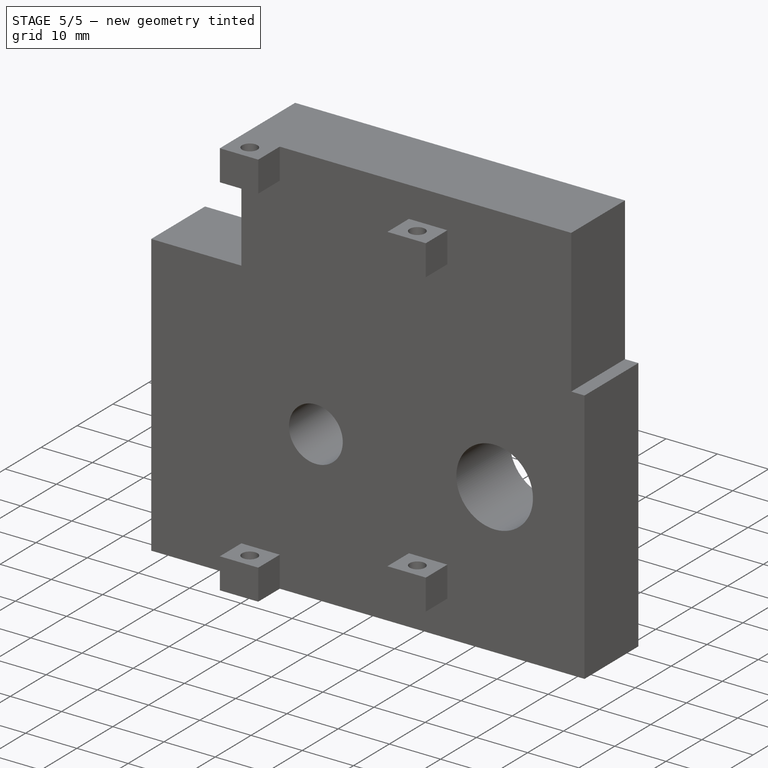
[diagram: stage 5 of 5 — iso view after this stage's code; geometry added in this stage tinted green]
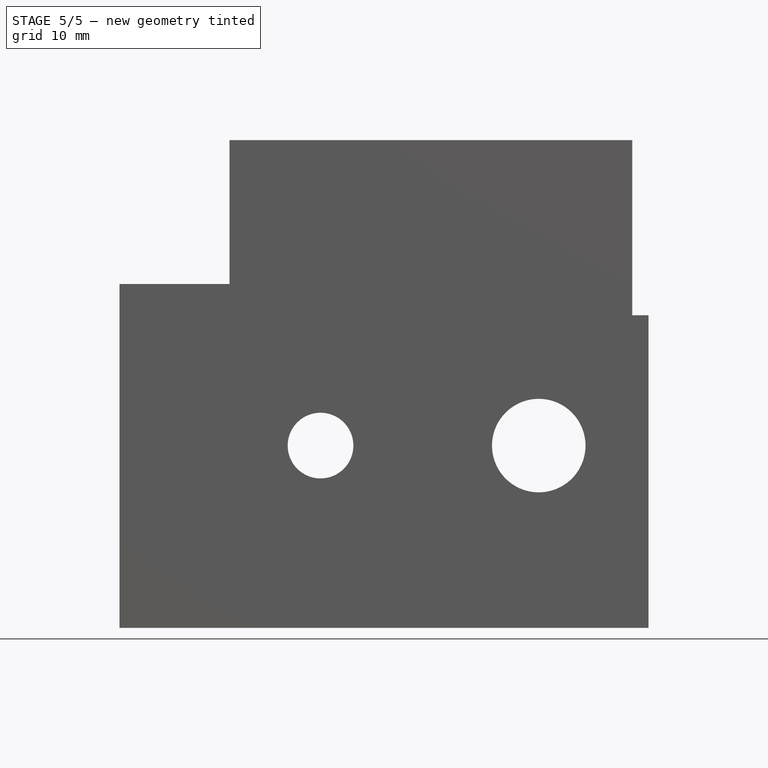
[diagram: stage 5 of 5 — front view after this stage's code; geometry added in this stage tinted green]
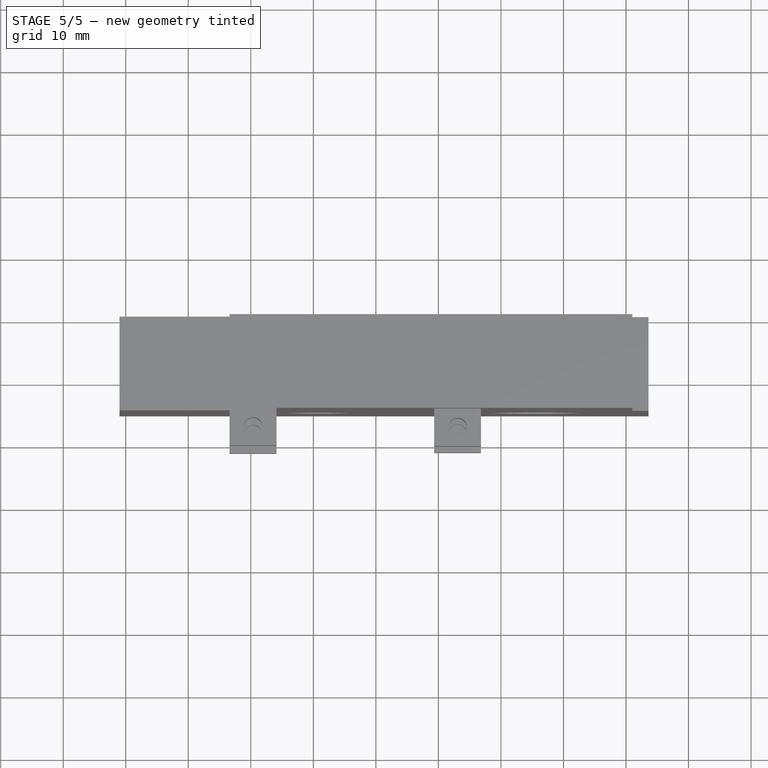
[diagram: stage 5 of 5 — top view after this stage's code; geometry added in this stage tinted green]
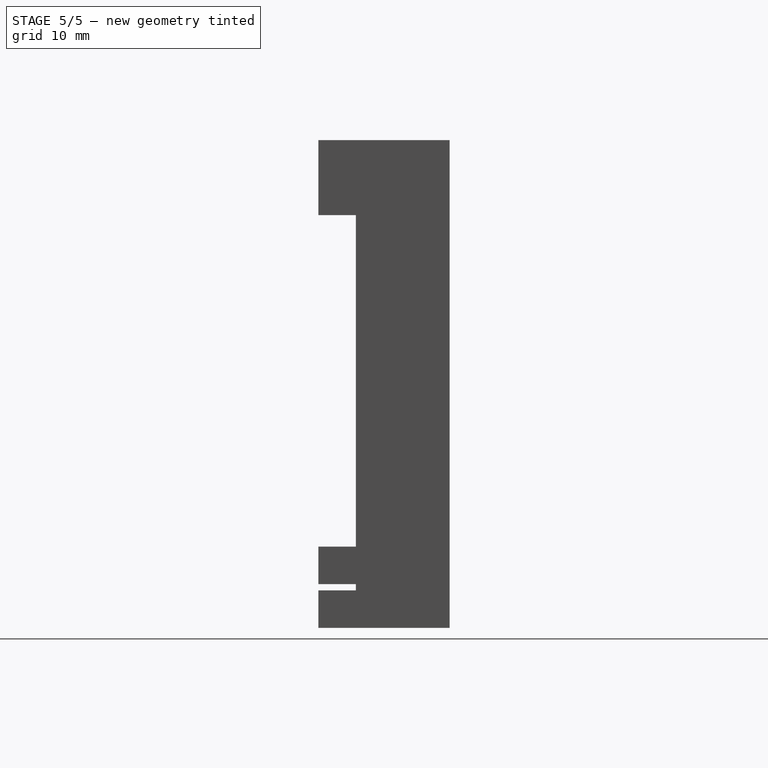
[diagram: stage 5 of 5 — right view after this stage's code; geometry added in this stage tinted green]
FEATURE [Sketcher::SketchObject] Sketch008
  ExternalGeometry = -> [Pad010]
  FullyConstrained = true
  MapMode = 5
  Placement = pos=(0,0,50) rot=(0,0,1;3.14159rad)
  Support = -> [Pad010]
  sketch-geometry (5):
    g0: LineSegment StartX=-3.6 StartY=15 StartZ=0 EndX=-8.6 EndY=10 EndZ=0
    g1: LineSegment StartX=-8.6 StartY=10 StartZ=0 EndX=-13.6 EndY=15 EndZ=0
    g2: LineSegment StartX=-13.6 StartY=15 StartZ=0 EndX=-3.6 EndY=15 EndZ=0
    g3: LineSegment StartX=-43.6 StartY=15 StartZ=0 EndX=-13.6 EndY=15 EndZ=0
    g4: LineSegment StartX=-3.6 StartY=15 StartZ=0 EndX=26.4 EndY=15 EndZ=0
  constraints (14):
    c: PointOnObject(g0,g-3)
    c: Coincident(g0,g1)
    c: PointOnObject(g1,g-3)
    c: Coincident(g1,g2)
    c: PointOnObject(g2,g0)
    c: Horizontal(g2)
    c: Distance(g2) = 10
    c: Angle(g0,g1) = 1.5708
    c: Equal(g1,g0)
    c: Coincident(g3,g-3)
    c: Coincident(g3,g1)
    c: Coincident(g4,g0)
    c: Coincident(g4,g-3)
    c: Equal(g3,g4)
FEATURE [PartDesign::Pocket] Pocket  label="PenSlot"
  BaseFeature = -> Pad010
  Length = 5
  Length2 = 100
  Placement = pos=(0,0,0) rot=(1,0,0;1.5708rad)
  Profile = -> Sketch008
  Type = 1
FEATURE [Sketcher::SketchObject] Sketch009
  ExternalGeometry = -> [Pocket]
  FullyConstrained = true
  MapMode = 5
  Placement = pos=(0,-15,-3.3e-15) rot=(1,0,0;1.5708rad)
  Support = -> [Pocket]
  sketch-geometry (8):
    g0: LineSegment StartX=13.6 StartY=10 StartZ=0 EndX=18.6 EndY=10 EndZ=0
    g1: LineSegment StartX=18.6 StartY=10 StartZ=0 EndX=18.6 EndY=0 EndZ=0
    g2: LineSegment StartX=18.6 StartY=0 StartZ=0 EndX=13.6 EndY=0 EndZ=0
    g3: LineSegment StartX=13.6 StartY=0 StartZ=0 EndX=13.6 EndY=10 EndZ=0
    g4: LineSegment StartX=-1.4 StartY=10 StartZ=0 EndX=3.6 EndY=10 EndZ=0
    g5: LineSegment StartX=3.6 StartY=10 StartZ=0 EndX=3.6 EndY=0 EndZ=0
    g6: LineSegment StartX=3.6 StartY=0 StartZ=0 EndX=-1.4 EndY=0 EndZ=0
    g7: LineSegment StartX=-1.4 StartY=0 StartZ=0 EndX=-1.4 EndY=10 EndZ=0
  constraints (21):
    c: Coincident(g0,g1)
    c: Coincident(g1,g2)
    c: Coincident(g2,g3)
    c: Coincident(g3,g0)
    c: Horizontal(g0)
    c: Vertical(g1)
    c: Tangent(g-1,g2)
    c: DistanceY(g1,g1) = 10
    c: DistanceX(g0,g0) = 5
    c: Tangent(g3,g-3)
    c: Coincident(g4,g5)
    c: Coincident(g5,g6)
    c: Coincident(g6,g7)
    c: Coincident(g7,g4)
    c: Horizontal(g4)
    c: Horizontal(g6)
    c: Vertical(g7)
    c: PointOnObject(g5,g-1)
    c: Tangent(g5,g-4)
    c: Equal(g4,g0)
    c: Equal(g5,g3)
FEATURE [PartDesign::Pocket] Pocket001  label="PenAttach"
  BaseFeature = -> Pocket
  Length = 5
  Length2 = 100
  Placement = pos=(0,0,0) rot=(1,0,0;1.5708rad)
  Profile = -> Sketch009
  Type = 1
FEATURE [PartDesign::LinearPattern] LinearPattern
  BaseFeature = -> Pocket001
  Direction = -> Sketch009 [V_Axis]
  Length = 40
  Occurrences = 2
  Originals = -> [Pocket001]
  Placement = pos=(0,0,0) rot=(1,0,0;1.5708rad)
FEATURE [Sketcher::SketchObject] Sketch010
  ExternalGeometry = -> [LinearPattern]
  FullyConstrained = true
  MapMode = 5
  Placement = pos=(0,-15,-3.3e-15) rot=(1,0,0;1.5708rad)
  Support = -> [LinearPattern]
  sketch-geometry (5):
    g0: LineSegment StartX=3.6 StartY=45 StartZ=0 EndX=13.6 EndY=45 EndZ=0
    g1: LineSegment StartX=13.6 StartY=45 StartZ=0 EndX=13.6 EndY=40 EndZ=0
    g2: LineSegment StartX=13.6 StartY=40 StartZ=0 EndX=3.6 EndY=40 EndZ=0
    g3: LineSegment StartX=3.6 StartY=40 StartZ=0 EndX=3.6 EndY=45 EndZ=0
    g4: LineSegment StartX=13.6 StartY=50 StartZ=0 EndX=13.6 EndY=45 EndZ=0
  constraints (12):
    c: Coincident(g0,g1)
    c: Coincident(g1,g2)
    c: Coincident(g2,g3)
    c: Coincident(g3,g0)
    c: Horizontal(g0)
    c: Vertical(g1)
    c: Vertical(g3)
    c: Coincident(g1,g-3)
    c: Coincident(g2,g-4)
    c: Coincident(g4,g-5)
    c: Coincident(g4,g0)
    c: Equal(g1,g4)
FEATURE [PartDesign::Pocket] Pocket002  label="PenStrap"
  BaseFeature = -> LinearPattern
  Length = 5
  Length2 = 100
  Placement = pos=(0,0,0) rot=(1,0,0;1.5708rad)
  Profile = -> Sketch010
  Type = 0
FEATURE [PartDesign::LinearPattern] LinearPattern001
  BaseFeature = -> Pocket002
  Direction = -> Sketch010 [V_Axis]
  Length = 35
  Occurrences = 2
  Originals = -> [Pocket002]
  Placement = pos=(0,0,0) rot=(1,0,0;1.5708rad)
  Reversed = true
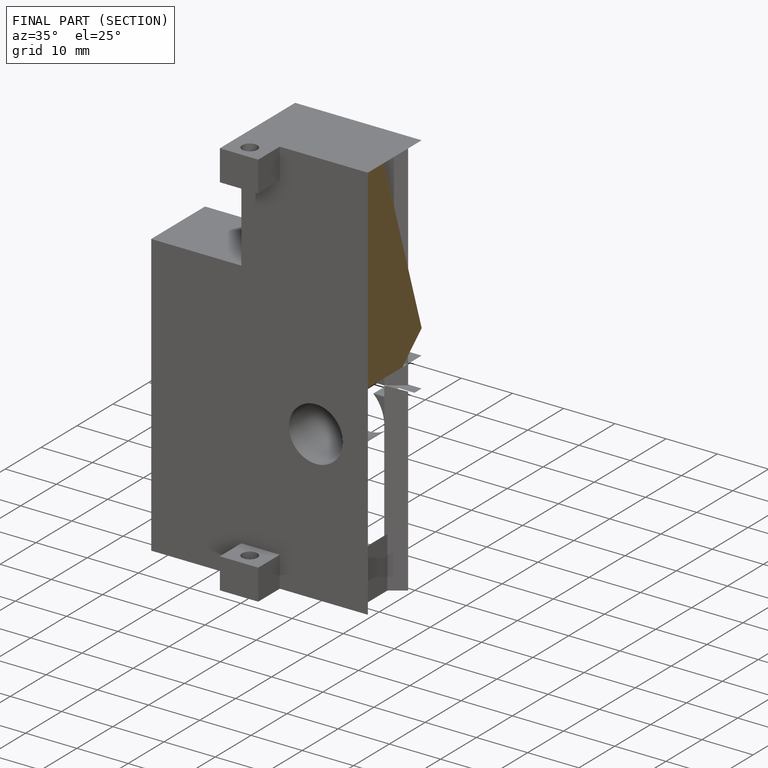
[diagram: finished part — half-section view (interior)]
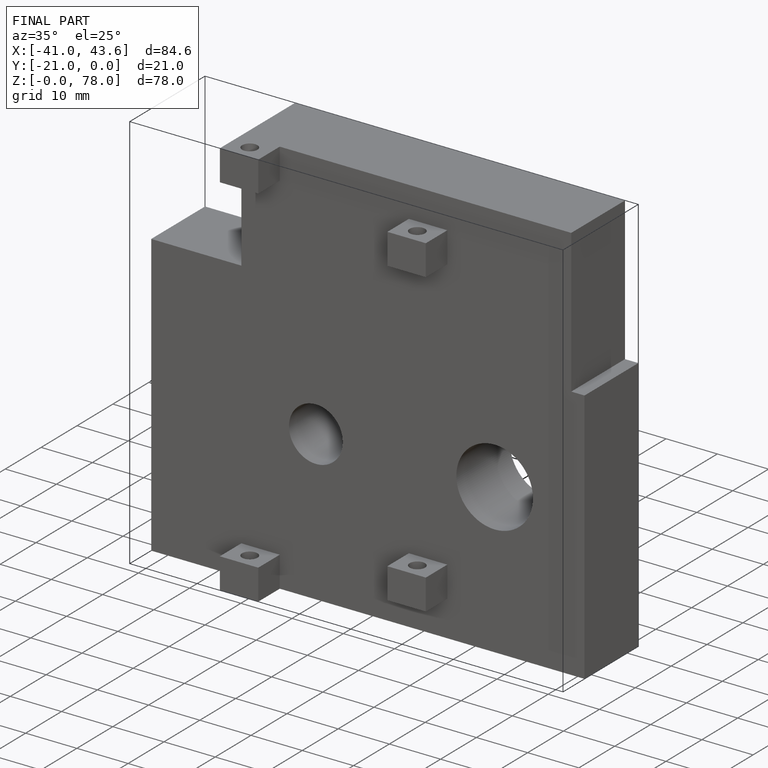
[diagram: finished part — iso view with bounding-box wireframe]
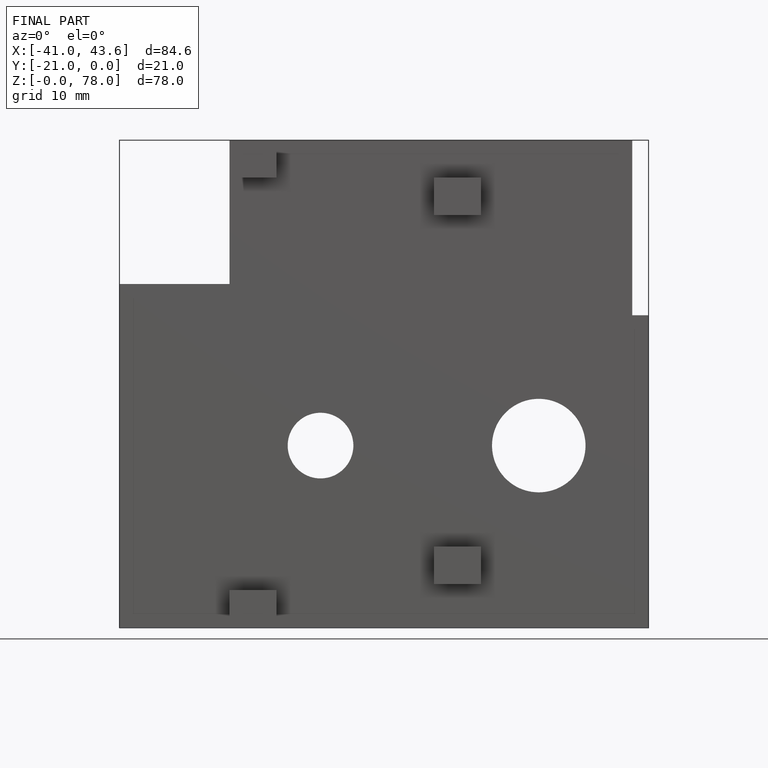
[diagram: finished part — front view with bounding-box wireframe]
